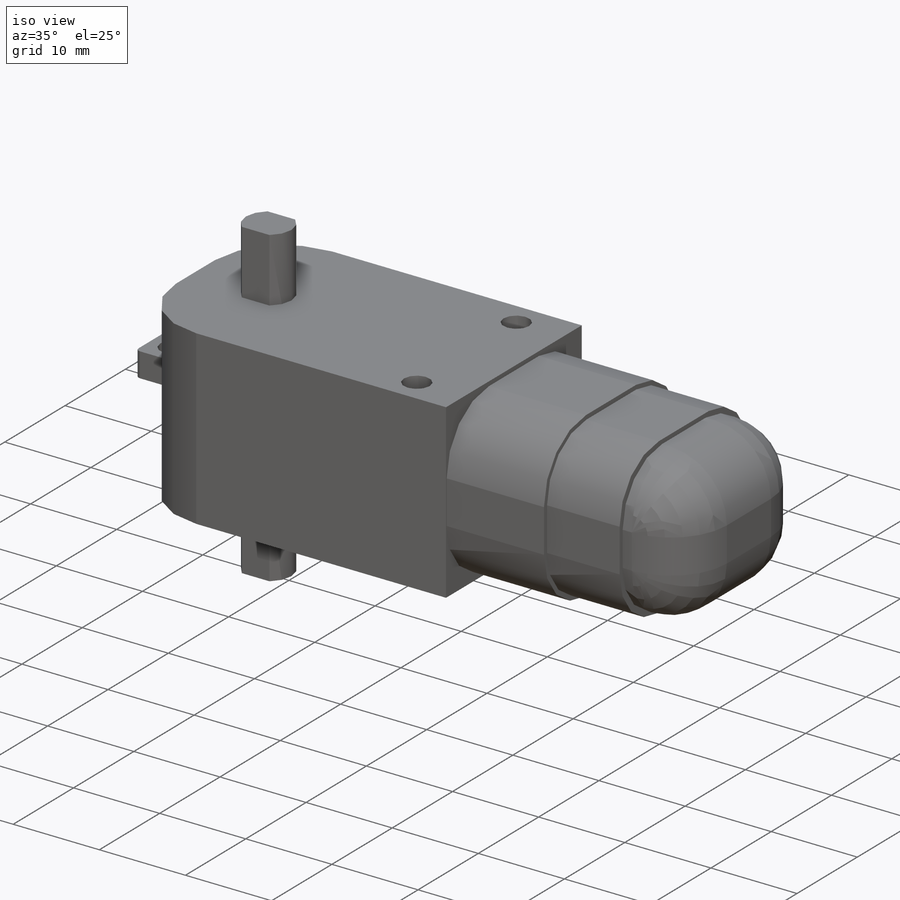
[diagram: iso view]
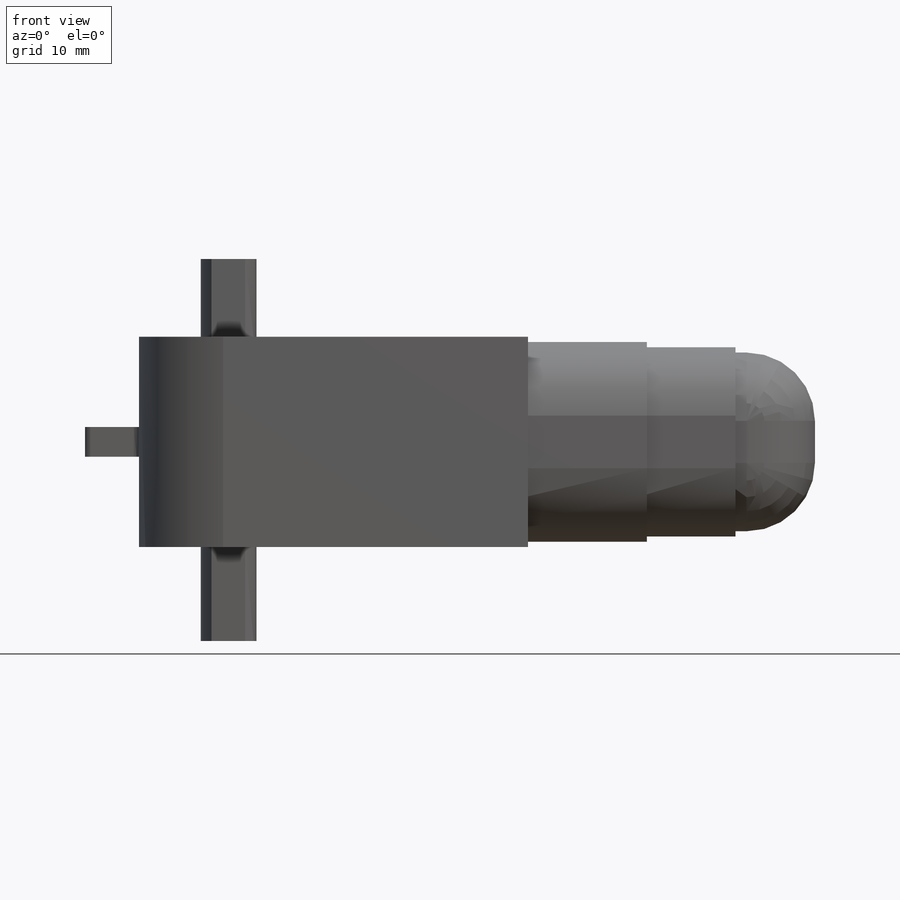
[diagram: front view]
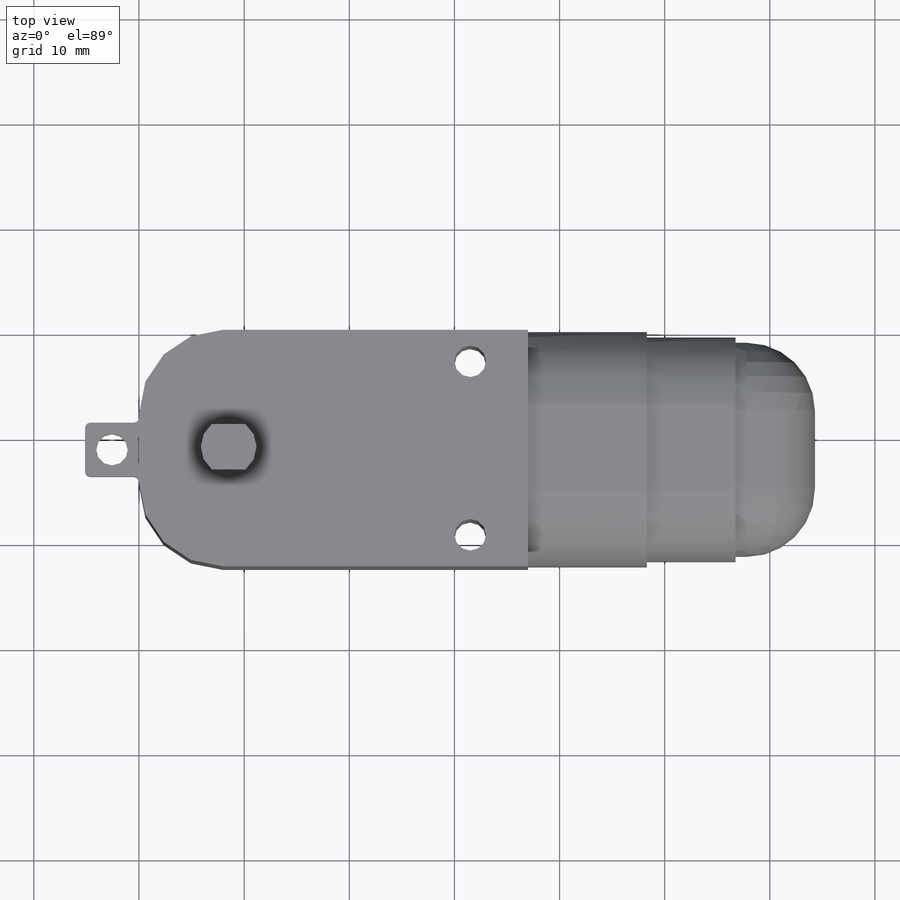
[diagram: top view]
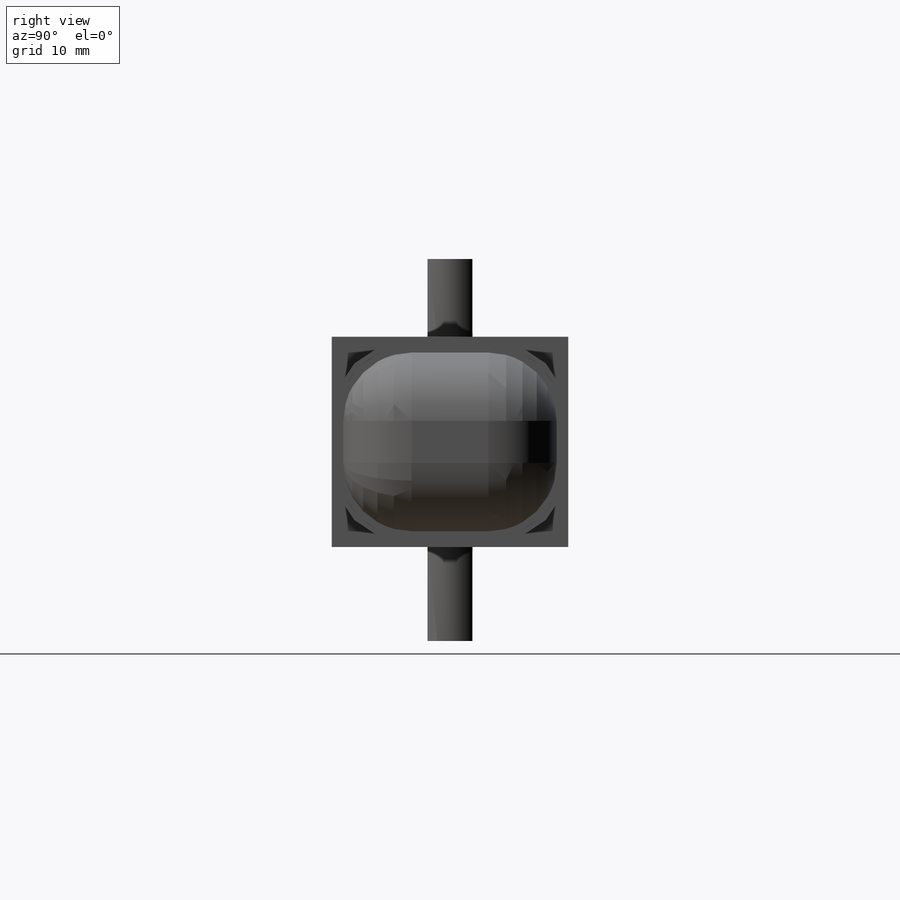
[diagram: right view]
SOLIDWORKS PART (.sldprt)
format: sldprt  version: not decoded by parser v0  size: 583,168 bytes
history: native  units: mm
features: sketch x10, fillet x9, extrude x6, cut_extrude x2, material x1 (+13 scaffold rows collapsed)
feature tree (41):
  scaffold x13  (default folders/planes/origin — collapsed)
  material  "Material <not specified>"
  sketch  "Sketch1"  dims[D1=37.0mm D2=22.5mm]
  extrude  "Boss-Extrude1"  Depth=20mm
  fillet  "Fillet1"  Radius=8mm
  sketch  "Sketch2"  dims[D1=0.5mm D2=0.1mm D3=19.0mm]
  extrude  "Boss-Extrude2"  Depth=11.3mm
  fillet  "Fillet2"  Radius=7mm
  sketch  "Sketch14"  dims[c1.D1=0.5mm c1.D2=0.5mm c1.D3=0.5mm c1.D4=0.8mm c2.D4=0.5mm]
  extrude  "Boss-Extrude5"  Depth=8.43mm
  fillet  "Fillet6"  Radius=6.5mm
  sketch  "Sketch15"  dims[D1=0.5mm D2=0.5mm D3=0.5mm D4=0.5mm]
  extrude  "Boss-Extrude6"  Depth=7.56mm
  fillet  "Fillet8"  Radius=6.5mm
  sketch  "Sketch16"  dims[c1.D1=5.35mm c1.D2=5.35mm c1.D3=5.35mm c2.D2=8.5mm]
  fillet  "Fillet9"  Radius=6.5mm
  sketch  "Sketch17"  dims[D1=~1.86445mm D2=0.5mm D3=0.5mm D4=0.0689mm]
  extrude  "Boss-Extrude7"  Depth=8.94mm
  sketch  "Sketch18"
  sketch  "Sketch19"  dims[D1=2.83mm D2=5.13mm]
  extrude  "Boss-Extrude8"  Depth=5.13mm
  sketch  "Sketch22"  dims[D1=~1.540918mm]
  cut_extrude  "Cut-Extrude2"  Depth=2.84mm
  fillet  "Fillet12"  Radius=0.5mm
  fillet  "Fillet13"  Radius=0.5mm
  fillet  "Fillet14"  Radius=0.5mm
  fillet  "Fillet15"  Radius=0.5mm
  sketch  "Sketch23"  dims[c1.D1=~1.533725mm c1.D3=3.0mm c1.D5=3.0mm c2.D3=3.0mm c2.D5=3.0mm c2.D1=3.0mm c2.D2=5.5mm c3.D3=3.0mm c3.D4=5.5mm c3.D5=37.0mm c3.D1=19.5mm c3.D2=19.5mm c3.D6=5.5mm c3.D7=22.5mm]
  cut_extrude  "Cut-Extrude3"  Depth=21.84mm
decode coverage: 26 of 27 modeling features carry decoded parameters
note: ~ marks probable driven/reference dimensions
note: suppression state not decoded; provenance and decode notes live in map.json
